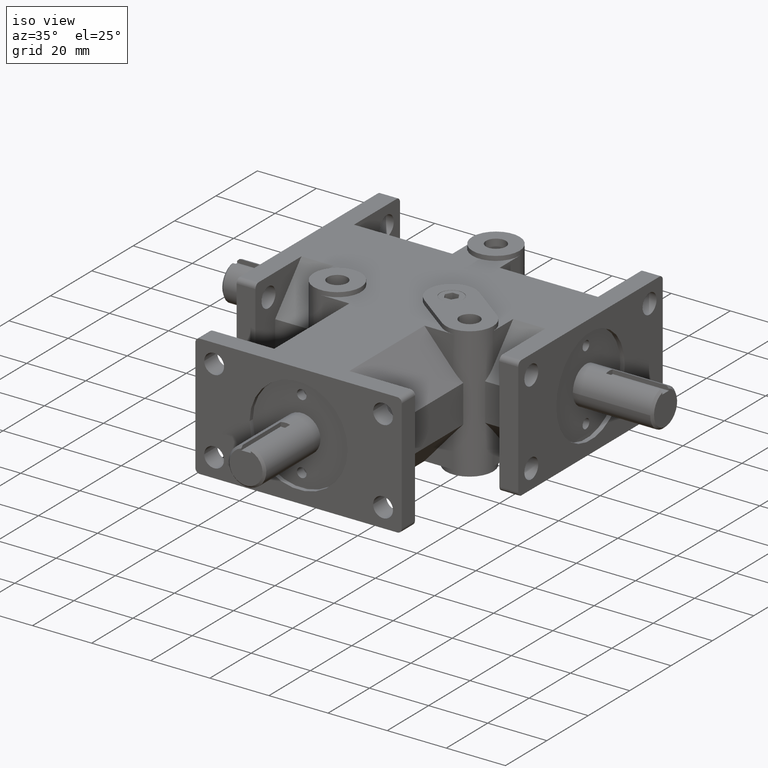
[diagram: clean part render]
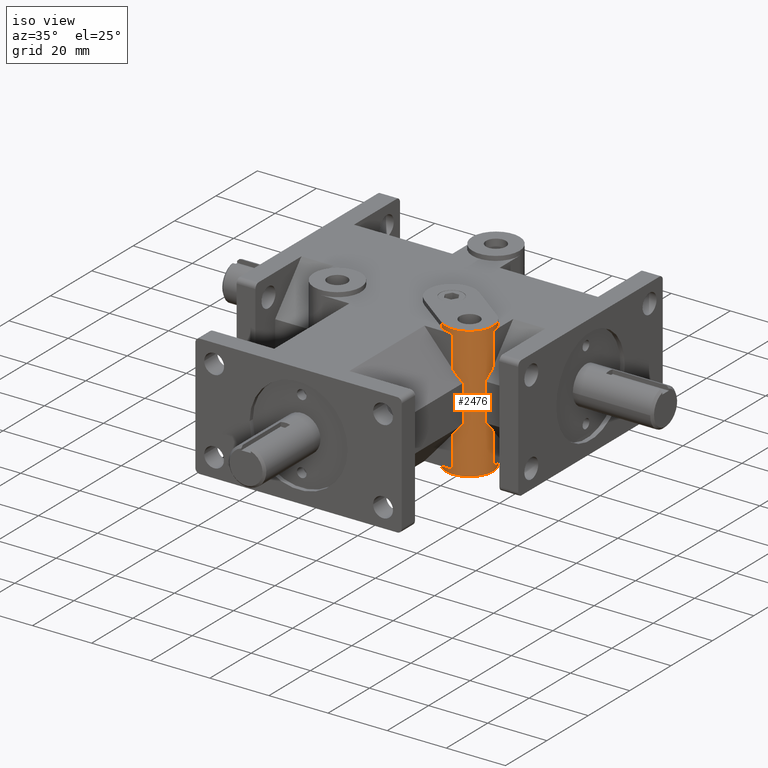
[diagram: same view with one face highlighted and labeled with its STEP entity id]
A machine part, iso view. The second image highlights one B-rep face of the part: STEP entity #2476.
In plain terms, the highlighted cylindrical surface (bore or boss wall) has radius 8.001 mm, axis along (0, 0, 1).
Its self-contained STEP definition (entity closure, byte-faithful):
#100=CYLINDRICAL_SURFACE('',#2729,0.315);
#115=CIRCLE('',#2531,0.315);
#117=CIRCLE('',#2533,0.315);
#118=CIRCLE('',#2540,0.315);
#119=CIRCLE('',#2541,0.315);
#186=CIRCLE('',#2674,0.315);
#203=CIRCLE('',#2725,0.315);
#318=FACE_OUTER_BOUND('',#491,.T.);
#491=EDGE_LOOP('',(#2105,#2106,#2107,#2108,#2109,#2110,#2111,#2112,#2113,
#2114,#2115,#2116,#2117,#2118,#2119,#2120,#2121,#2122,#2123,#2124));
#533=ELLIPSE('',#2527,0.475316107974472,0.315);
#535=ELLIPSE('',#2537,0.475316107974472,0.315);
#541=ELLIPSE('',#2557,0.475316107974472,0.315);
#544=ELLIPSE('',#2563,0.475316107974472,0.315);
#584=LINE('',#3613,#812);
#698=LINE('',#4004,#926);
#731=LINE('',#4119,#959);
#732=LINE('',#4121,#960);
#733=LINE('',#4123,#961);
#734=LINE('',#4125,#962);
#736=LINE('',#4135,#964);
#737=LINE('',#4136,#965);
#738=LINE('',#4137,#966);
#812=VECTOR('',#2846,1.);
#926=VECTOR('',#3240,1.);
#959=VECTOR('',#3357,1.);
#960=VECTOR('',#3360,1.);
#961=VECTOR('',#3363,1.);
#962=VECTOR('',#3366,1.);
#964=VECTOR('',#3380,0.315);
#965=VECTOR('',#3381,1.);
#966=VECTOR('',#3382,1.);
#1002=VERTEX_POINT('',#3518);
#1003=VERTEX_POINT('',#3520);
#1006=VERTEX_POINT('',#3528);
#1033=VERTEX_POINT('',#3582);
#1034=VERTEX_POINT('',#3584);
#1037=VERTEX_POINT('',#3590);
#1041=VERTEX_POINT('',#3602);
#1045=VERTEX_POINT('',#3609);
#1047=VERTEX_POINT('',#3618);
#1048=VERTEX_POINT('',#3620);
#1049=VERTEX_POINT('',#3622);
#1090=VERTEX_POINT('',#3722);
#1091=VERTEX_POINT('',#3723);
#1099=VERTEX_POINT('',#3746);
#1101=VERTEX_POINT('',#3750);
#1178=VERTEX_POINT('',#3990);
#1179=VERTEX_POINT('',#3991);
#1211=VERTEX_POINT('',#4127);
#1235=EDGE_CURVE('',#1002,#1003,#533,.T.);
#1267=EDGE_CURVE('',#1033,#1034,#115,.T.);
#1271=EDGE_CURVE('',#1037,#1006,#117,.T.);
#1280=EDGE_CURVE('',#1045,#1041,#535,.T.);
#1281=EDGE_CURVE('',#1003,#1045,#584,.T.);
#1285=EDGE_CURVE('',#1047,#1048,#118,.T.);
#1286=EDGE_CURVE('',#1048,#1049,#119,.T.);
#1337=EDGE_CURVE('',#1090,#1091,#541,.T.);
#1352=EDGE_CURVE('',#1099,#1101,#544,.T.);
#1468=EDGE_CURVE('',#1178,#1179,#186,.T.);
#1475=EDGE_CURVE('',#1090,#1101,#698,.T.);
#1526=EDGE_CURVE('',#1002,#1006,#731,.T.);
#1527=EDGE_CURVE('',#1099,#1033,#732,.T.);
#1528=EDGE_CURVE('',#1049,#1091,#733,.T.);
#1529=EDGE_CURVE('',#1047,#1041,#734,.T.);
#1530=EDGE_CURVE('',#1211,#1211,#203,.T.);
#1533=EDGE_CURVE('',#1048,#1211,#736,.T.);
#1534=EDGE_CURVE('',#1037,#1178,#737,.T.);
#1535=EDGE_CURVE('',#1034,#1179,#738,.T.);
#2105=ORIENTED_EDGE('',*,*,#1337,.T.);
#2106=ORIENTED_EDGE('',*,*,#1528,.F.);
#2107=ORIENTED_EDGE('',*,*,#1286,.F.);
#2108=ORIENTED_EDGE('',*,*,#1533,.T.);
#2109=ORIENTED_EDGE('',*,*,#1530,.T.);
#2110=ORIENTED_EDGE('',*,*,#1533,.F.);
#2111=ORIENTED_EDGE('',*,*,#1285,.F.);
#2112=ORIENTED_EDGE('',*,*,#1529,.T.);
#2113=ORIENTED_EDGE('',*,*,#1280,.F.);
#2114=ORIENTED_EDGE('',*,*,#1281,.F.);
#2115=ORIENTED_EDGE('',*,*,#1235,.F.);
#2116=ORIENTED_EDGE('',*,*,#1526,.T.);
#2117=ORIENTED_EDGE('',*,*,#1271,.F.);
#2118=ORIENTED_EDGE('',*,*,#1534,.T.);
#2119=ORIENTED_EDGE('',*,*,#1468,.T.);
#2120=ORIENTED_EDGE('',*,*,#1535,.F.);
#2121=ORIENTED_EDGE('',*,*,#1267,.F.);
#2122=ORIENTED_EDGE('',*,*,#1527,.F.);
#2123=ORIENTED_EDGE('',*,*,#1352,.T.);
#2124=ORIENTED_EDGE('',*,*,#1475,.F.);
#2476=ADVANCED_FACE('',(#318),#100,.T.);
#2527=AXIS2_PLACEMENT_3D('',#3521,#2784,#2785);
#2531=AXIS2_PLACEMENT_3D('',#3585,#2821,#2822);
#2533=AXIS2_PLACEMENT_3D('',#3592,#2827,#2828);
#2537=AXIS2_PLACEMENT_3D('',#3611,#2842,#2843);
#2540=AXIS2_PLACEMENT_3D('',#3621,#2852,#2853);
#2541=AXIS2_PLACEMENT_3D('',#3623,#2854,#2855);
#2557=AXIS2_PLACEMENT_3D('',#3724,#2929,#2930);
#2563=AXIS2_PLACEMENT_3D('',#3752,#2953,#2954);
#2674=AXIS2_PLACEMENT_3D('',#3992,#3226,#3227);
#2725=AXIS2_PLACEMENT_3D('',#4128,#3369,#3370);
#2729=AXIS2_PLACEMENT_3D('',#4134,#3378,#3379);
#2784=DIRECTION('center_axis',(0.,0.748870055165724,-0.662716862978517));
#2785=DIRECTION('ref_axis',(0.,0.662716862978517,0.748870055165724));
#2821=DIRECTION('center_axis',(0.,0.,-1.));
#2822=DIRECTION('ref_axis',(1.,0.,0.));
#2827=DIRECTION('center_axis',(0.,0.,-1.));
#2828=DIRECTION('ref_axis',(1.,0.,0.));
#2842=DIRECTION('center_axis',(0.,0.748870055165724,0.662716862978517));
#2843=DIRECTION('ref_axis',(0.,0.662716862978517,-0.748870055165724));
#2846=DIRECTION('',(0.,0.,-1.));
#2852=DIRECTION('center_axis',(0.,0.,1.));
#2853=DIRECTION('ref_axis',(1.,0.,0.));
#2854=DIRECTION('center_axis',(0.,0.,1.));
#2855=DIRECTION('ref_axis',(1.,0.,0.));
#2929=DIRECTION('center_axis',(0.748870055165724,0.,-0.662716862978517));
#2930=DIRECTION('ref_axis',(0.662716862978517,0.,0.748870055165724));
#2953=DIRECTION('center_axis',(0.748870055165724,0.,0.662716862978517));
#2954=DIRECTION('ref_axis',(0.662716862978517,0.,-0.748870055165724));
#3226=DIRECTION('center_axis',(0.,0.,-1.));
#3227=DIRECTION('ref_axis',(1.,0.,0.));
#3240=DIRECTION('',(0.,0.,1.));
#3357=DIRECTION('',(0.,0.,1.));
#3360=DIRECTION('',(0.,0.,1.));
#3363=DIRECTION('',(0.,0.,1.));
#3366=DIRECTION('',(0.,0.,1.));
#3369=DIRECTION('center_axis',(0.,0.,1.));
#3370=DIRECTION('ref_axis',(1.,0.,0.));
#3378=DIRECTION('center_axis',(0.,0.,1.));
#3379=DIRECTION('ref_axis',(1.,0.,0.));
#3380=DIRECTION('',(0.,0.,-1.));
#3381=DIRECTION('',(0.,0.,1.));
#3382=DIRECTION('',(0.,0.,1.));
#3518=CARTESIAN_POINT('',(1.195,1.995,0.385600000000001));
#3520=CARTESIAN_POINT('',(1.17124731758421,1.875,0.25));
#3521=CARTESIAN_POINT('Origin',(0.88,1.995,0.3856));
#3528=CARTESIAN_POINT('',(1.195,1.995,0.815));
#3582=CARTESIAN_POINT('',(0.879999999999999,1.68,0.815));
#3584=CARTESIAN_POINT('',(0.690999999999999,1.743,0.815));
#3585=CARTESIAN_POINT('Origin',(0.88,1.995,0.815));
#3590=CARTESIAN_POINT('',(1.069,2.247,0.815));
#3592=CARTESIAN_POINT('Origin',(0.88,1.995,0.815));
#3602=CARTESIAN_POINT('',(1.195,1.995,-0.385600000000001));
#3609=CARTESIAN_POINT('',(1.17124731758421,1.875,-0.25));
#3611=CARTESIAN_POINT('Origin',(0.88,1.995,-0.3856));
#3613=CARTESIAN_POINT('',(1.17124731758421,1.875,0.));
#3618=CARTESIAN_POINT('',(1.195,1.995,-0.815));
#3620=CARTESIAN_POINT('',(0.565,1.995,-0.815));
#3621=CARTESIAN_POINT('Origin',(0.88,1.995,-0.815));
#3622=CARTESIAN_POINT('',(0.879999999999999,1.68,-0.815));
#3623=CARTESIAN_POINT('Origin',(0.88,1.995,-0.815));
#3722=CARTESIAN_POINT('',(1.,1.70375268241579,-0.25));
#3723=CARTESIAN_POINT('',(0.879999999999999,1.68,-0.385600000000001));
#3724=CARTESIAN_POINT('Origin',(0.88,1.995,-0.3856));
#3746=CARTESIAN_POINT('',(0.879999999999999,1.68,0.385600000000001));
#3750=CARTESIAN_POINT('',(1.,1.70375268241579,0.25));
#3752=CARTESIAN_POINT('Origin',(0.88,1.995,0.3856));
#3990=CARTESIAN_POINT('',(1.069,2.247,0.875));
#3991=CARTESIAN_POINT('',(0.690999999999999,1.743,0.875));
#3992=CARTESIAN_POINT('Origin',(0.88,1.995,0.875));
#4004=CARTESIAN_POINT('',(1.,1.70375268241579,0.));
#4119=CARTESIAN_POINT('',(1.195,1.995,0.));
#4121=CARTESIAN_POINT('',(0.879999999999999,1.68,0.));
#4123=CARTESIAN_POINT('',(0.879999999999999,1.68,0.));
#4125=CARTESIAN_POINT('',(1.195,1.995,0.));
#4127=CARTESIAN_POINT('',(0.565,1.995,-0.875));
#4128=CARTESIAN_POINT('Origin',(0.88,1.995,-0.875));
#4134=CARTESIAN_POINT('Origin',(0.88,1.995,0.));
#4135=CARTESIAN_POINT('',(0.565,1.995,0.));
#4136=CARTESIAN_POINT('',(1.069,2.247,0.));
#4137=CARTESIAN_POINT('',(0.691,1.743,0.));